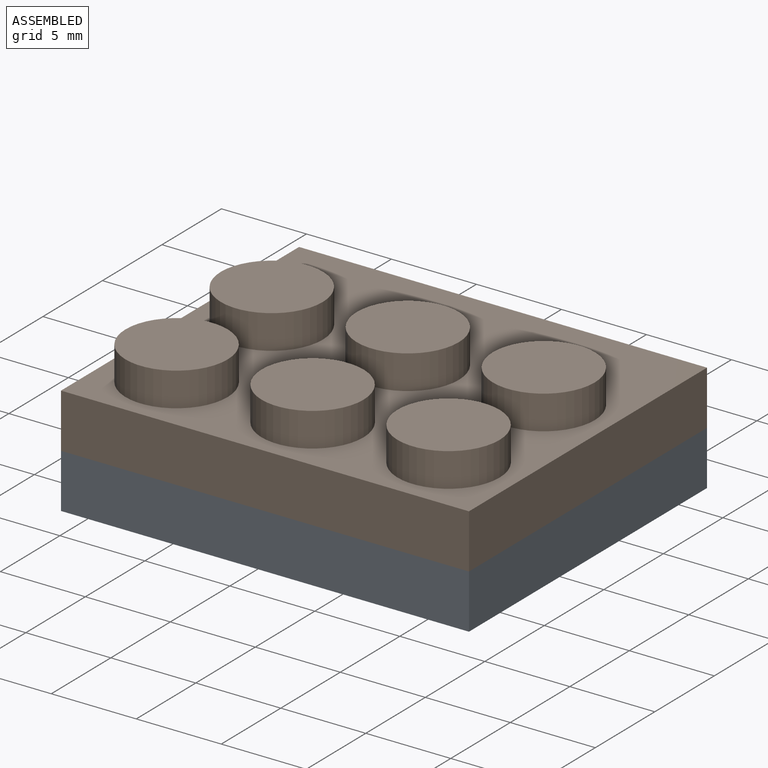
[diagram: assembled view]
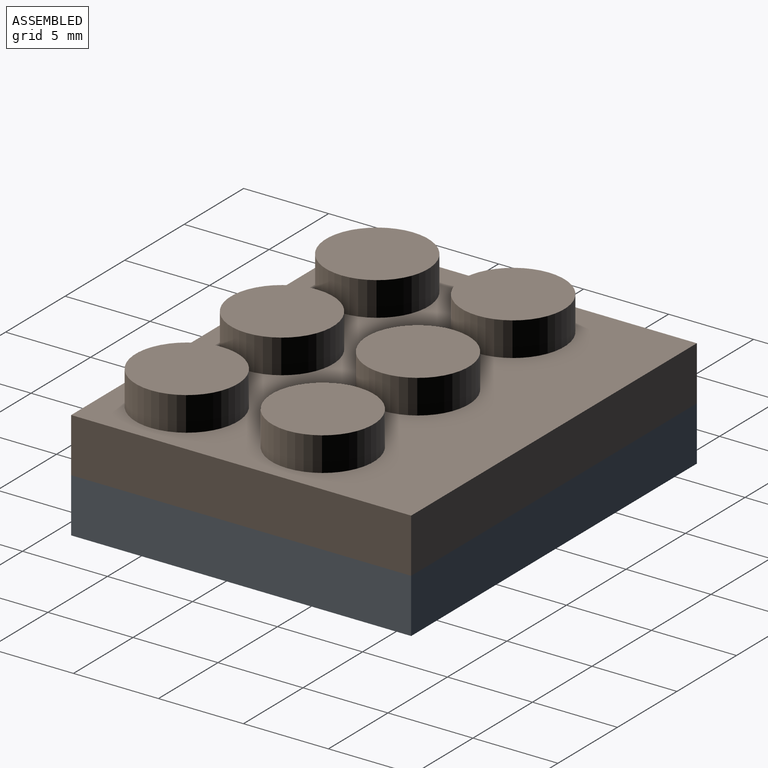
[diagram: assembled view, second angle]
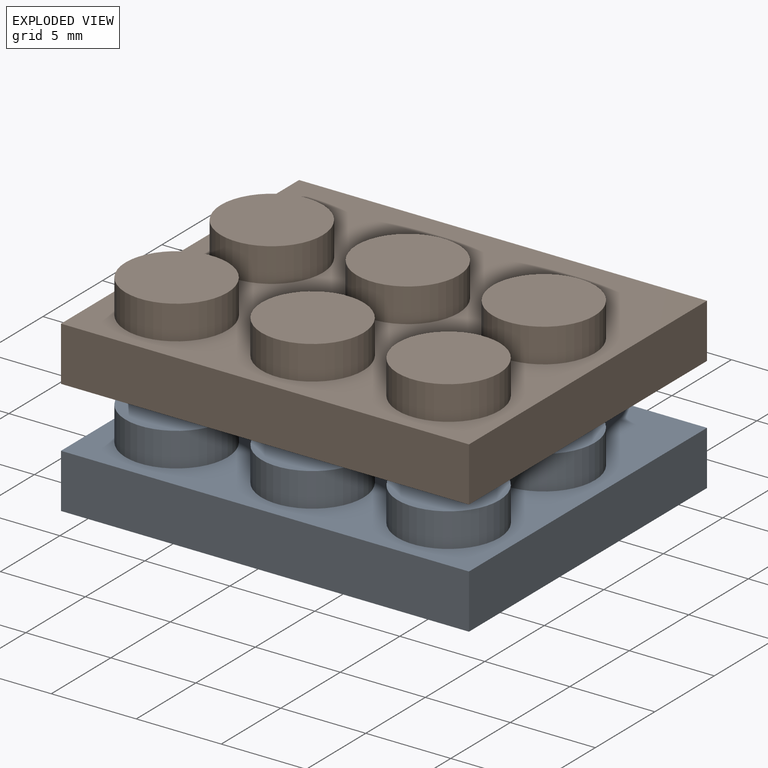
[diagram: exploded view]
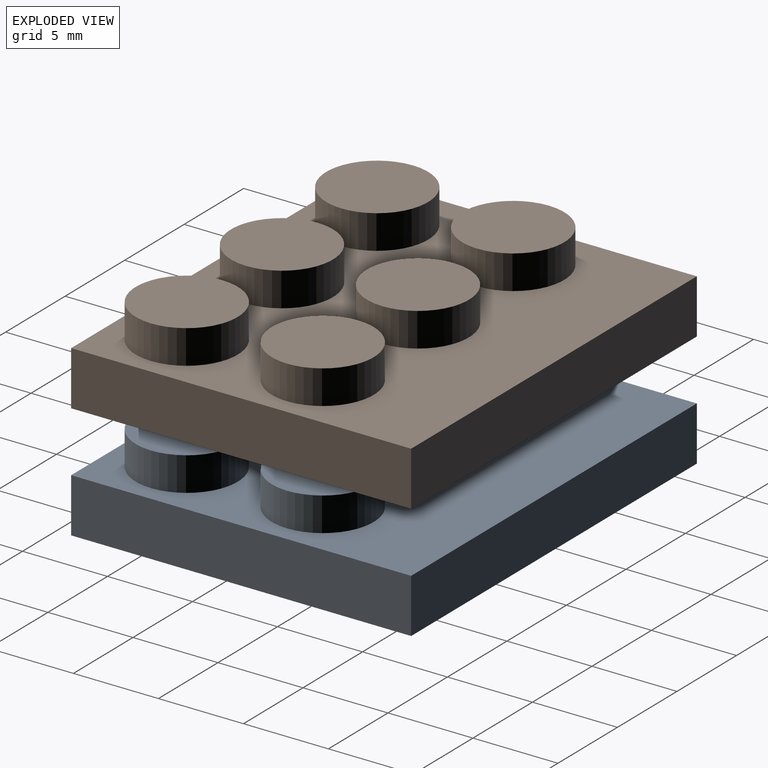
[diagram: exploded view, second angle]
ASSEMBLY  parts=2 mates=3
PART A: 41 faces, bbox 24x20x5.2 mm
  f0: plane 4.3x4.16mm, normal (0,0,-1), area 14.3mm2, adj f21,f23,f39
  f1: cylinder r=3mm len=6mm, axis (0,0,-1), area 37.7mm2, adj f2,f15
  f2: plane 6x6mm, normal (0,0,1), area 28.3mm2, adj f1
  f3: cylinder r=3mm len=6mm, axis (0,0,-1), area 37.7mm2, adj f4,f15
  f4: plane 6x6mm, normal (0,0,1), area 28.3mm2, adj f3
  f5: cylinder r=3mm len=6mm, axis (0,0,-1), area 37.7mm2, adj f6,f15
  f6: plane 6x6mm, normal (0,0,1), area 28.3mm2, adj f5
  f7: cylinder r=3mm len=6mm, axis (0,0,-1), area 37.7mm2, adj f8,f15
  f8: plane 6x6mm, normal (0,0,1), area 28.3mm2, adj f7
  f9: cylinder r=3mm len=6mm, axis (0,0,-1), area 37.7mm2, adj f10,f15
  f10: plane 6x6mm, normal (0,0,1), area 28.3mm2, adj f9
  f11: plane 20x3.2mm, normal (-1,0,0), area 64mm2, adj f12,f14,f15,f16
  f12: plane 24x3.2mm, normal (0,-1,0), area 76.8mm2, adj f11,f13,f15,f16
  f13: plane 20x3.2mm, normal (1,0,0), area 64mm2, adj f12,f14,f15,f16
  f14: plane 24x3.2mm, normal (0,1,0), area 76.8mm2, adj f11,f13,f15,f16
  f15: plane 24x20mm, normal (0,0,1), area 310.4mm2, adj f1,f3,f5,f7,f9,f11,f12,f13
  f16: plane 24x20mm, normal (0,0,-1), area 84mm2, adj f11,f12,f13,f14,f29,f30,f31,f32
  f17: cylinder r=3mm len=6mm, axis (0,0,-1), area 37.7mm2, adj f15,f18
  f18: plane 6x6mm, normal (0,0,1), area 28.3mm2, adj f17
  f19: cylinder r=2mm len=4mm, axis (0,0,-1), area 25.1mm2, adj f20,f33
  f20: plane 4x4mm, normal (0,0,-1), area 12.6mm2, adj f19
  f21: cylinder r=2mm len=4mm, axis (0,0,-1), area 25.1mm2, adj f0,f22,f33,f36
  f22: plane 4x4mm, normal (0,0,-1), area 12.6mm2, adj f21
  f23: cylinder r=2mm len=4mm, axis (0,0,-1), area 25.1mm2, adj f0,f24,f33,f40
  f24: plane 4x4mm, normal (0,0,-1), area 12.6mm2, adj f23
  f25: cylinder r=2mm len=4mm, axis (0,0,-1), area 25.1mm2, adj f26,f33
  f26: plane 4x4mm, normal (0,0,-1), area 12.6mm2, adj f25
  f27: cylinder r=2mm len=4mm, axis (0,0,-1), area 25.1mm2, adj f28,f33
  f28: plane 4x4mm, normal (0,0,-1), area 12.6mm2, adj f27
  f29: plane 18x2.2mm, normal (1,0,0), area 39.6mm2, adj f16,f30,f32,f33
  f30: plane 22x2.2mm, normal (0,1,0), area 48.4mm2, adj f16,f29,f31,f33
  f31: plane 18x2.2mm, normal (-1,0,0), area 39.6mm2, adj f16,f30,f32,f33
  f32: plane 22x2.2mm, normal (0,-1,0), area 48.4mm2, adj f16,f29,f31,f33
  f33: plane 22x18mm, normal (0,0,-1), area 300.6mm2, adj f19,f21,f23,f25,f27,f29,f30,f31
  f34: cylinder r=2mm len=4mm, axis (0,0,-1), area 25.1mm2, adj f33,f35
  f35: plane 4x4mm, normal (0,0,-1), area 12.6mm2, adj f34
  f36: plane 2.34x0.57mm, normal (0,0,1), area 0.9mm2, adj f21,f38,f39
  f37: plane 5.3x5.3mm, normal (0,0,-1), area 7.5mm2, adj f38,f39
  f38: cylinder r=2.65mm len=5.3mm, axis (0,0,1), area 36.6mm2, adj f33,f36,f37,f40
  f39: cylinder r=2.15mm len=4.3mm, axis (0,0,1), area 29.7mm2, adj f0,f36,f37,f40
  f40: plane 2.34x0.57mm, normal (0,0,1), area 0.9mm2, adj f23,f38,f39
PART B: same geometry as A
PLACE A t=(-3.97,1.49,3.88)mm fixed
PLACE B t=(-3.97,1.49,7.08)mm
MATE cylindrical B.f3 <-> A.f3  axis (0,0,-1) through (-3.97,3.49,11.28)mm
MATE planar B.f16 <-> A.f15  axis (0,0,-1) through (-15.97,1.49,7.08)mm
MATE cylindrical B.f17 <-> A.f17  axis (0,0,-1) through (-11.97,-4.51,11.28)mm
